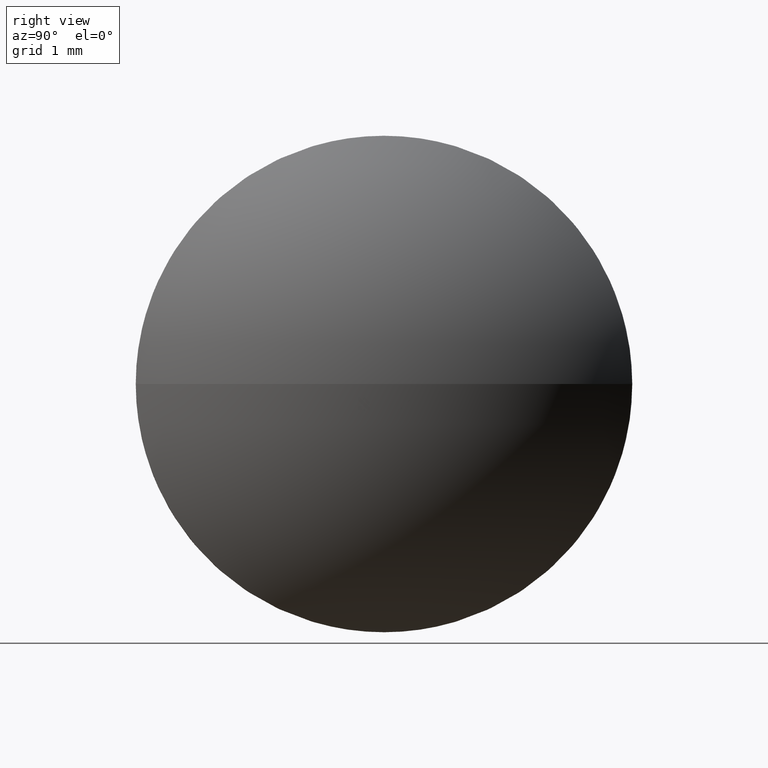
[diagram: clean part render]
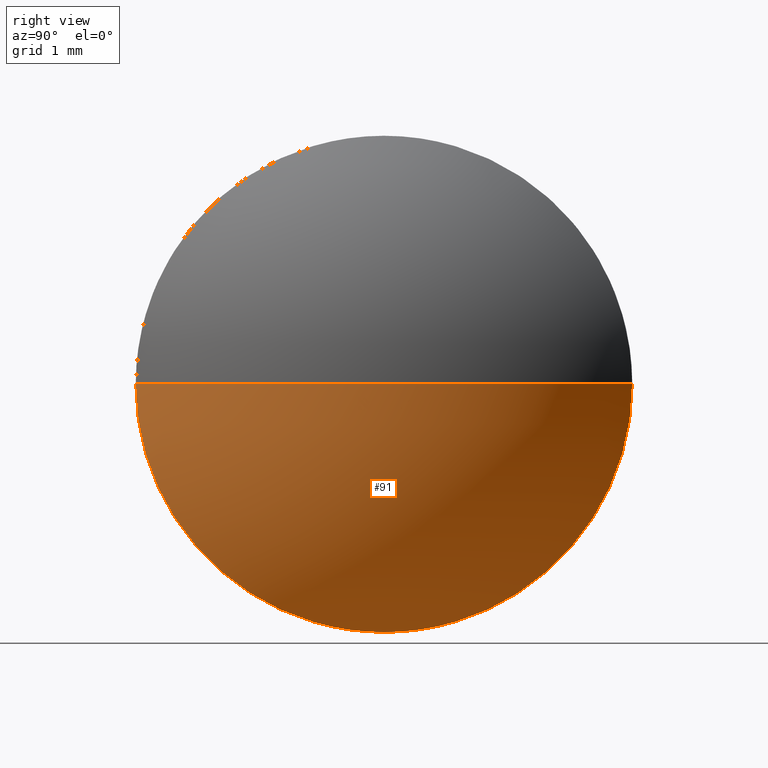
[diagram: same view with one face highlighted and labeled with its STEP entity id]
A machine part, right view. The second image highlights one B-rep face of the part: STEP entity #91.
In plain terms, the highlighted spherical surface has radius 4.1281 mm.
Its self-contained STEP definition (entity closure, byte-faithful):
#3 = ORIENTED_EDGE ( 'NONE', *, *, #90, .F. ) ;
#4 = CARTESIAN_POINT ( 'NONE',  ( 396.8941318018415800, -5.334423510750469600, -3.149999999999999900 ) ) ;
#9 = DIRECTION ( 'NONE',  ( 0.0000000000000000000, 0.0000000000000000000, 1.000000000000000000 ) ) ;
#11 = CARTESIAN_POINT ( 'NONE',  ( 394.2260153634854300, -5.334423510750465200, 0.0000000000000000000 ) ) ;
#20 = CARTESIAN_POINT ( 'NONE',  ( 398.3541318018416200, -5.334423510750465200, 0.0000000000000000000 ) ) ;
#22 = DIRECTION ( 'NONE',  ( 0.0000000000000000000, -1.224646799147353200E-016, 1.000000000000000000 ) ) ;
#26 = VERTEX_POINT ( 'NONE', #30 ) ;
#30 = CARTESIAN_POINT ( 'NONE',  ( 396.8941318018415800, -8.484423510750467300, 0.0000000000000000000 ) ) ;
#31 = VERTEX_POINT ( 'NONE', #4 ) ;
#34 = AXIS2_PLACEMENT_3D ( 'NONE', #84, #83, #176 ) ;
#38 = ORIENTED_EDGE ( 'NONE', *, *, #94, .T. ) ;
#40 = VERTEX_POINT ( 'NONE', #73 ) ;
#43 = CIRCLE ( 'NONE', #120, 3.149999999999999900 ) ;
#48 = DIRECTION ( 'NONE',  ( 0.0000000000000000000, 0.0000000000000000000, -1.000000000000000000 ) ) ;
#49 = CARTESIAN_POINT ( 'NONE',  ( 396.8941318018415800, -5.334423510750469600, 0.0000000000000000000 ) ) ;
#65 = CIRCLE ( 'NONE', #168, 4.128116438356140200 ) ;
#69 = ORIENTED_EDGE ( 'NONE', *, *, #130, .F. ) ;
#73 = CARTESIAN_POINT ( 'NONE',  ( 396.8941318018415800, -2.184423510750467000, 3.857637417314160200E-016 ) ) ;
#83 = DIRECTION ( 'NONE',  ( -1.000000000000000000, -0.0000000000000000000, -0.0000000000000000000 ) ) ;
#84 = CARTESIAN_POINT ( 'NONE',  ( 396.8941318018415800, -5.334423510750469600, 0.0000000000000000000 ) ) ;
#89 = VERTEX_POINT ( 'NONE', #20 ) ;
#90 = EDGE_CURVE ( 'NONE', #31, #26, #43, .T. ) ;
#91 = ADVANCED_FACE ( 'NONE', ( #127 ), #145, .T. ) ;
#92 = CARTESIAN_POINT ( 'NONE',  ( 394.2260153634854300, -5.334423510750465200, 0.0000000000000000000 ) ) ;
#94 = EDGE_CURVE ( 'NONE', #89, #26, #148, .T. ) ;
#107 = DIRECTION ( 'NONE',  ( 0.0000000000000000000, -1.000000000000000000, 0.0000000000000000000 ) ) ;
#115 = CIRCLE ( 'NONE', #34, 3.149999999999999900 ) ;
#120 = AXIS2_PLACEMENT_3D ( 'NONE', #49, #165, #9 ) ;
#121 = DIRECTION ( 'NONE',  ( 0.0000000000000000000, -1.000000000000000000, -1.224646799147353200E-016 ) ) ;
#122 = EDGE_CURVE ( 'NONE', #89, #40, #65, .T. ) ;
#125 = AXIS2_PLACEMENT_3D ( 'NONE', #11, #48, #136 ) ;
#127 = FACE_OUTER_BOUND ( 'NONE', #140, .T. ) ;
#128 = DIRECTION ( 'NONE',  ( 0.0000000000000000000, 0.0000000000000000000, 1.000000000000000000 ) ) ;
#130 = EDGE_CURVE ( 'NONE', #40, #31, #115, .T. ) ;
#136 = DIRECTION ( 'NONE',  ( -1.000000000000000000, 0.0000000000000000000, 0.0000000000000000000 ) ) ;
#140 = EDGE_LOOP ( 'NONE', ( #149, #38, #3, #69 ) ) ;
#145 = SPHERICAL_SURFACE ( 'NONE', #154, 4.128116438356141100 ) ;
#148 = CIRCLE ( 'NONE', #125, 4.128116438356144600 ) ;
#149 = ORIENTED_EDGE ( 'NONE', *, *, #122, .F. ) ;
#154 = AXIS2_PLACEMENT_3D ( 'NONE', #163, #128, #107 ) ;
#163 = CARTESIAN_POINT ( 'NONE',  ( 394.2260153634854300, -5.334423510750465200, 0.0000000000000000000 ) ) ;
#165 = DIRECTION ( 'NONE',  ( -1.000000000000000000, -0.0000000000000000000, -0.0000000000000000000 ) ) ;
#168 = AXIS2_PLACEMENT_3D ( 'NONE', #92, #22, #121 ) ;
#176 = DIRECTION ( 'NONE',  ( 0.0000000000000000000, 0.0000000000000000000, 1.000000000000000000 ) ) ;